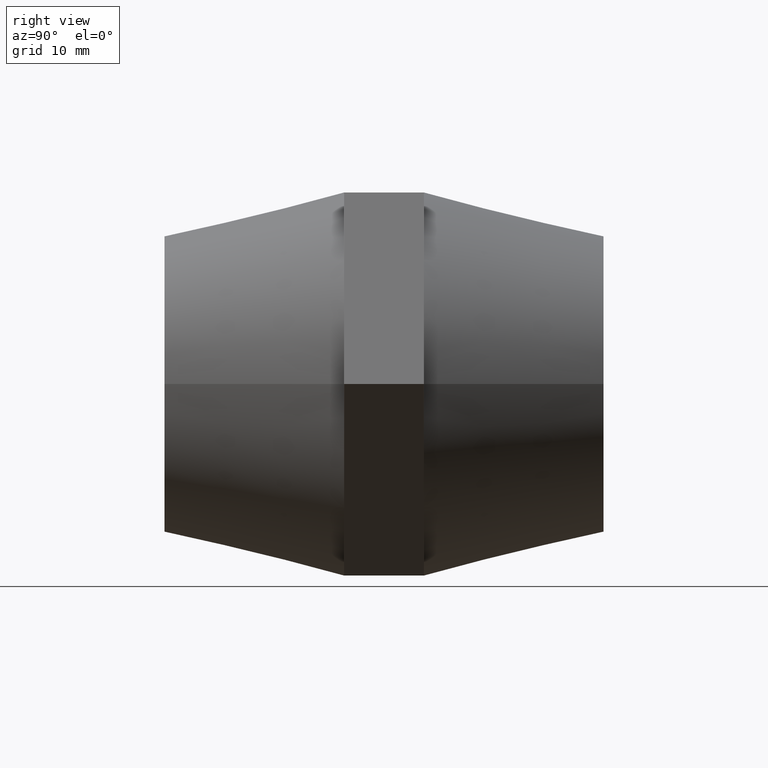
[diagram: clean part render]
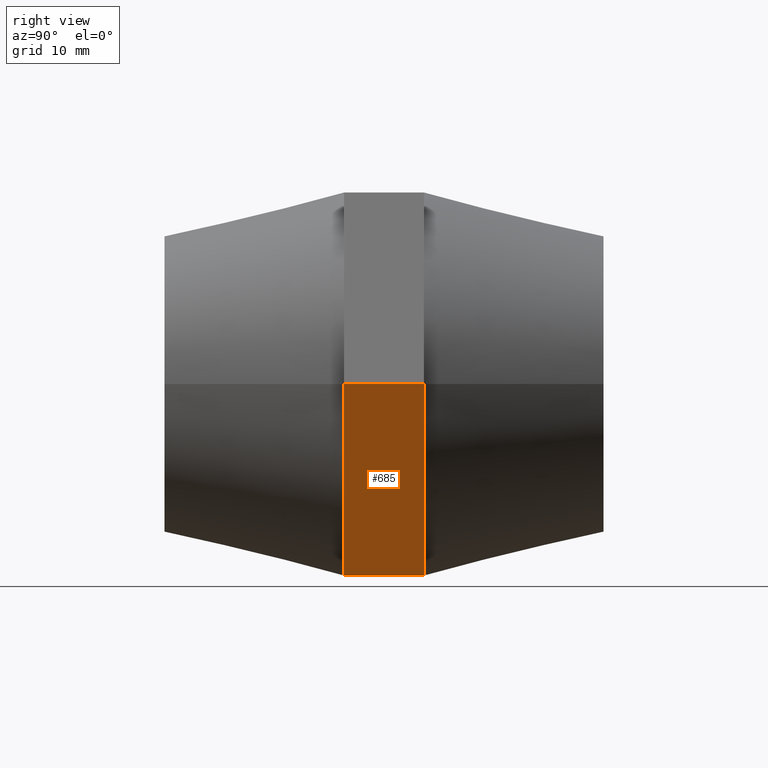
[diagram: same view with one face highlighted and labeled with its STEP entity id]
A machine part, right view. The second image highlights one B-rep face of the part: STEP entity #685.
In plain terms, the highlighted planar face has unit normal (-0.866, 0, 0.5).
Its self-contained STEP definition (entity closure, byte-faithful):
#27 = CARTESIAN_POINT ( 'NONE',  ( 27.71281292110205300, 5.000000000000000000, -3.620861245507129500E-015 ) ) ;
#32 = EDGE_CURVE ( 'NONE', #2830, #3574, #1201, .T. ) ;
#70 = DIRECTION ( 'NONE',  ( 0.4999999999999998900, 0.0000000000000000000, 0.8660254037844387100 ) ) ;
#85 = DIRECTION ( 'NONE',  ( -0.4999999999999998900, 0.0000000000000000000, -0.8660254037844387100 ) ) ;
#179 = LINE ( 'NONE', #1405, #3161 ) ;
#239 = CARTESIAN_POINT ( 'NONE',  ( 13.85640646055100000, 5.000000000000000000, -24.00000000000000000 ) ) ;
#321 = EDGE_CURVE ( 'NONE', #2465, #3574, #926, .T. ) ;
#395 = VERTEX_POINT ( 'NONE', #948 ) ;
#428 = CARTESIAN_POINT ( 'NONE',  ( 27.71281292110205300, -5.000000000000000000, -3.620861245507129500E-015 ) ) ;
#582 = DIRECTION ( 'NONE',  ( 0.0000000000000000000, -1.000000000000000000, 0.0000000000000000000 ) ) ;
#685 = ADVANCED_FACE ( 'NONE', ( #2163 ), #3298, .F. ) ;
#806 = VERTEX_POINT ( 'NONE', #428 ) ;
#850 = EDGE_CURVE ( 'NONE', #395, #2465, #1945, .T. ) ;
#926 = LINE ( 'NONE', #239, #1064 ) ;
#948 = CARTESIAN_POINT ( 'NONE',  ( 20.78460969082650000, 5.000000000000000000, -12.00000000000000000 ) ) ;
#1064 = VECTOR ( 'NONE', #2001, 1000.000000000000000 ) ;
#1087 = DIRECTION ( 'NONE',  ( -0.4999999999999998900, 0.0000000000000000000, -0.8660254037844387100 ) ) ;
#1199 = CARTESIAN_POINT ( 'NONE',  ( 13.85640646055100000, -5.000000000000000000, -24.00000000000000000 ) ) ;
#1201 = LINE ( 'NONE', #1536, #2707 ) ;
#1232 = CARTESIAN_POINT ( 'NONE',  ( 27.71281292110205300, 5.000000000000000000, -3.620861245507129500E-015 ) ) ;
#1255 = DIRECTION ( 'NONE',  ( -0.4999999999999998900, 0.0000000000000000000, -0.8660254037844387100 ) ) ;
#1358 = ORIENTED_EDGE ( 'NONE', *, *, #850, .F. ) ;
#1405 = CARTESIAN_POINT ( 'NONE',  ( 27.71281292110205300, -5.000000000000000000, -3.620861245507129500E-015 ) ) ;
#1529 = CARTESIAN_POINT ( 'NONE',  ( 20.78460969082655300, -5.000000000000000000, -12.00000000000000000 ) ) ;
#1536 = CARTESIAN_POINT ( 'NONE',  ( 27.71281292110205300, -5.000000000000000000, -3.620861245507129500E-015 ) ) ;
#1558 = ORIENTED_EDGE ( 'NONE', *, *, #32, .T. ) ;
#1642 = ORIENTED_EDGE ( 'NONE', *, *, #321, .F. ) ;
#1659 = EDGE_CURVE ( 'NONE', #2927, #806, #2655, .T. ) ;
#1757 = VECTOR ( 'NONE', #2982, 1000.000000000000000 ) ;
#1945 = LINE ( 'NONE', #2731, #2947 ) ;
#2001 = DIRECTION ( 'NONE',  ( 0.0000000000000000000, -1.000000000000000000, 0.0000000000000000000 ) ) ;
#2012 = EDGE_CURVE ( 'NONE', #806, #2830, #179, .T. ) ;
#2134 = LINE ( 'NONE', #2325, #1757 ) ;
#2163 = FACE_OUTER_BOUND ( 'NONE', #2793, .T. ) ;
#2197 = CARTESIAN_POINT ( 'NONE',  ( 27.71281292110205300, 5.000000000000000000, -3.620861245507129500E-015 ) ) ;
#2226 = ORIENTED_EDGE ( 'NONE', *, *, #2563, .F. ) ;
#2230 = ORIENTED_EDGE ( 'NONE', *, *, #2012, .T. ) ;
#2325 = CARTESIAN_POINT ( 'NONE',  ( 27.71281292110205300, 5.000000000000000000, -3.620861245507129500E-015 ) ) ;
#2426 = CARTESIAN_POINT ( 'NONE',  ( 13.85640646055100000, 5.000000000000000000, -24.00000000000000000 ) ) ;
#2465 = VERTEX_POINT ( 'NONE', #2426 ) ;
#2563 = EDGE_CURVE ( 'NONE', #2927, #395, #2134, .T. ) ;
#2655 = LINE ( 'NONE', #27, #2945 ) ;
#2707 = VECTOR ( 'NONE', #1255, 1000.000000000000000 ) ;
#2731 = CARTESIAN_POINT ( 'NONE',  ( 27.71281292110205300, 5.000000000000000000, -3.620861245507129500E-015 ) ) ;
#2793 = EDGE_LOOP ( 'NONE', ( #2230, #1558, #1642, #1358, #2226, #3114 ) ) ;
#2830 = VERTEX_POINT ( 'NONE', #1529 ) ;
#2835 = AXIS2_PLACEMENT_3D ( 'NONE', #1232, #3273, #70 ) ;
#2927 = VERTEX_POINT ( 'NONE', #2197 ) ;
#2945 = VECTOR ( 'NONE', #582, 1000.000000000000000 ) ;
#2947 = VECTOR ( 'NONE', #85, 1000.000000000000000 ) ;
#2982 = DIRECTION ( 'NONE',  ( -0.4999999999999998900, 0.0000000000000000000, -0.8660254037844387100 ) ) ;
#3114 = ORIENTED_EDGE ( 'NONE', *, *, #1659, .T. ) ;
#3161 = VECTOR ( 'NONE', #1087, 1000.000000000000000 ) ;
#3273 = DIRECTION ( 'NONE',  ( -0.8660254037844387100, 0.0000000000000000000, 0.4999999999999998900 ) ) ;
#3298 = PLANE ( 'NONE',  #2835 ) ;
#3574 = VERTEX_POINT ( 'NONE', #1199 ) ;